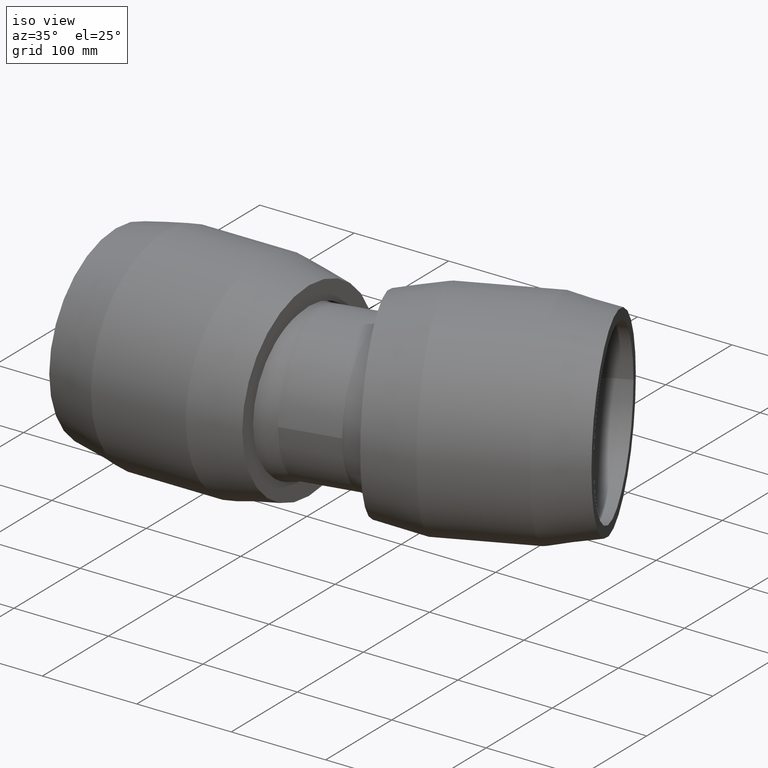
[diagram: clean part render]
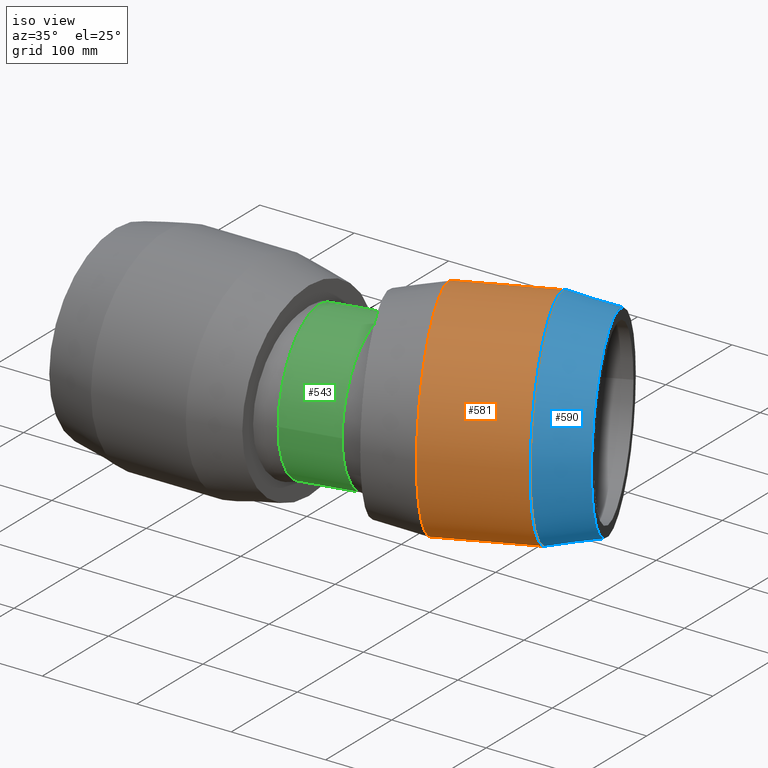
[diagram: same view with three faces highlighted in distinct colors, each labeled with its STEP entity id]
A machine part, iso view with three faces highlighted in distinct colors.
Their STEP definitions:

[orange] entity #581 — the highlighted cylindrical surface (bore or boss wall) has radius 112 mm, axis along (0.9135, 0.4067, 0).
#60=CYLINDRICAL_SURFACE('',#672,112.);
#101=FACE_BOUND('',#242,.T.);
#153=FACE_OUTER_BOUND('',#241,.T.);
#241=EDGE_LOOP('',(#516));
#242=EDGE_LOOP('',(#517));
#310=CIRCLE('',#673,112.);
#311=CIRCLE('',#674,112.);
#362=VERTEX_POINT('',#1350);
#363=VERTEX_POINT('',#1352);
#418=EDGE_CURVE('',#362,#362,#310,.T.);
#419=EDGE_CURVE('',#363,#363,#311,.T.);
#516=ORIENTED_EDGE('',*,*,#418,.T.);
#517=ORIENTED_EDGE('',*,*,#419,.F.);
#581=ADVANCED_FACE('',(#153,#101),#60,.T.);
#672=AXIS2_PLACEMENT_3D('',#1349,#851,#852);
#673=AXIS2_PLACEMENT_3D('',#1351,#853,#854);
#674=AXIS2_PLACEMENT_3D('',#1353,#855,#856);
#851=DIRECTION('center_axis',(0.913545457642601,0.406736643075799,1.19788532833232E-16));
#852=DIRECTION('ref_axis',(-0.406736643075799,0.913545457642601,-2.54618386665283E-17));
#853=DIRECTION('center_axis',(0.913545457642601,0.406736643075799,1.19788532833232E-16));
#854=DIRECTION('ref_axis',(1.19788532833232E-16,2.54618386665283E-17,-1.));
#855=DIRECTION('center_axis',(0.913545457642601,0.406736643075799,1.19788532833232E-16));
#856=DIRECTION('ref_axis',(1.19788532833232E-16,2.54618386665283E-17,-1.));
#1349=CARTESIAN_POINT('Origin',(263.27002458186,55.9597712159024,1.64807843250725E-14));
#1350=CARTESIAN_POINT('',(171.855538583712,137.858682989469,7.61567404619313E-15));
#1351=CARTESIAN_POINT('Origin',(217.410042608202,35.5415917334972,1.04673999768443E-14));
#1352=CARTESIAN_POINT('',(263.575502531029,178.695041954279,1.96424427426496E-14));
#1353=CARTESIAN_POINT('Origin',(309.130006555519,76.3779506983075,2.24941686733008E-14));

[blue] entity #590 — the highlighted conical surface has half-angle 12.155 deg.
#24=CONICAL_SURFACE('',#690,106.4,12.1549416972222);
#111=FACE_BOUND('',#261,.T.);
#112=FACE_BOUND('',#262,.T.);
#162=FACE_OUTER_BOUND('',#260,.T.);
#260=EDGE_LOOP('',(#536));
#261=EDGE_LOOP('',(#537));
#262=EDGE_LOOP('',(#538));
#270=B_SPLINE_CURVE_WITH_KNOTS('',3,(#1314,#1315,#1316,#1317,#1318,#1319,
#1320,#1321,#1322,#1323,#1324,#1325,#1326,#1327,#1328,#1329,#1330,#1331,
#1332,#1333,#1334,#1335,#1336,#1337,#1338,#1339,#1340,#1341,#1342,#1343,
#1344,#1345,#1346,#1347),.UNSPECIFIED.,.T.,.F.,(4,2,2,2,2,2,2,2,2,2,2,2,
2,2,2,2,4),(0.,0.358164539478607,0.716329078957213,1.07125671713556,1.42618435531391,
1.78111199349225,2.1360396316706,2.49420417114921,2.85236871062781,3.22667654703129,
3.60098438343476,3.96472311986868,4.32846185630259,4.6922005927365,5.05593932917041,
5.43024716557389,5.80455500197736),.UNSPECIFIED.);
#311=CIRCLE('',#674,112.);
#318=CIRCLE('',#689,100.8);
#361=VERTEX_POINT('',#1313);
#363=VERTEX_POINT('',#1352);
#370=VERTEX_POINT('',#1374);
#417=EDGE_CURVE('',#361,#361,#270,.T.);
#419=EDGE_CURVE('',#363,#363,#311,.T.);
#426=EDGE_CURVE('',#370,#370,#318,.T.);
#536=ORIENTED_EDGE('',*,*,#419,.T.);
#537=ORIENTED_EDGE('',*,*,#417,.F.);
#538=ORIENTED_EDGE('',*,*,#426,.F.);
#590=ADVANCED_FACE('',(#162,#111,#112),#24,.T.);
#674=AXIS2_PLACEMENT_3D('',#1353,#855,#856);
#689=AXIS2_PLACEMENT_3D('',#1375,#885,#886);
#690=AXIS2_PLACEMENT_3D('',#1376,#887,#888);
#855=DIRECTION('center_axis',(0.913545457642601,0.406736643075799,1.19788532833232E-16));
#856=DIRECTION('ref_axis',(1.19788532833232E-16,2.54618386665283E-17,-1.));
#885=DIRECTION('center_axis',(0.913545457642601,0.406736643075799,1.19788532833232E-16));
#886=DIRECTION('ref_axis',(1.19788532833232E-16,2.54618386665283E-17,-1.));
#887=DIRECTION('center_axis',(-0.913545457642601,-0.406736643075799,-1.19788532833232E-16));
#888=DIRECTION('ref_axis',(-0.406736643075799,0.913545457642601,-2.54618386665283E-17));
#1313=CARTESIAN_POINT('',(295.713556576889,185.002838010826,9.53230390726031));
#1314=CARTESIAN_POINT('Ctrl Pts',(295.713556576889,185.002838010826,9.53230390726032));
#1315=CARTESIAN_POINT('Ctrl Pts',(296.881594962363,185.248847154968,9.50950962551594));
#1316=CARTESIAN_POINT('Ctrl Pts',(298.121661827329,185.531745359839,9.25560423304978));
#1317=CARTESIAN_POINT('Ctrl Pts',(300.39039085949,186.089279585382,8.26367097447149));
#1318=CARTESIAN_POINT('Ctrl Pts',(301.419193267486,186.362844735535,7.52536227569253));
#1319=CARTESIAN_POINT('Ctrl Pts',(303.028993309592,186.808698003922,5.83427867926059));
#1320=CARTESIAN_POINT('Ctrl Pts',(303.720675265536,187.011219540689,4.77134468544424));
#1321=CARTESIAN_POINT('Ctrl Pts',(304.635845120632,187.284254723557,2.44572169687771));
#1322=CARTESIAN_POINT('Ctrl Pts',(304.859810604798,187.353672433519,1.18309212726118));
#1323=CARTESIAN_POINT('Ctrl Pts',(304.859810604798,187.353672433519,-1.18309212726113));
#1324=CARTESIAN_POINT('Ctrl Pts',(304.635845120632,187.284254723557,-2.44572169687766));
#1325=CARTESIAN_POINT('Ctrl Pts',(303.720675265536,187.011219540689,-4.7713446854442));
#1326=CARTESIAN_POINT('Ctrl Pts',(303.028993309592,186.808698003922,-5.83427867926054));
#1327=CARTESIAN_POINT('Ctrl Pts',(301.419193267486,186.362844735535,-7.52536227569248));
#1328=CARTESIAN_POINT('Ctrl Pts',(300.39039085949,186.089279585382,-8.26367097447144));
#1329=CARTESIAN_POINT('Ctrl Pts',(298.121661827329,185.531745359839,-9.25560423304973));
#1330=CARTESIAN_POINT('Ctrl Pts',(296.881594962363,185.248847154968,-9.50950962551589));
#1331=CARTESIAN_POINT('Ctrl Pts',(294.492872023529,184.745740670556,-9.5561255795412));
#1332=CARTESIAN_POINT('Ctrl Pts',(293.182037919885,184.493293098419,-9.33173342989749));
#1333=CARTESIAN_POINT('Ctrl Pts',(290.750755303332,184.065843775261,-8.36861293753614));
#1334=CARTESIAN_POINT('Ctrl Pts',(289.6304806826,183.889656884799,-7.62997198433754));
#1335=CARTESIAN_POINT('Ctrl Pts',(287.87447241197,183.630315190374,-5.92658105514738));
#1336=CARTESIAN_POINT('Ctrl Pts',(287.112892474502,183.527872987375,-4.85754180002549));
#1337=CARTESIAN_POINT('Ctrl Pts',(286.09633293171,183.395749192723,-2.50062894385518));
#1338=CARTESIAN_POINT('Ctrl Pts',(285.842162775071,183.365067735393,-1.21246245477969));
#1339=CARTESIAN_POINT('Ctrl Pts',(285.842162775071,183.365067735393,1.21246245477973));
#1340=CARTESIAN_POINT('Ctrl Pts',(286.09633293171,183.395749192723,2.50062894385522));
#1341=CARTESIAN_POINT('Ctrl Pts',(287.112892474502,183.527872987375,4.85754180002554));
#1342=CARTESIAN_POINT('Ctrl Pts',(287.87447241197,183.630315190374,5.92658105514742));
#1343=CARTESIAN_POINT('Ctrl Pts',(289.6304806826,183.889656884799,7.62997198433759));
#1344=CARTESIAN_POINT('Ctrl Pts',(290.750755303332,184.065843775261,8.36861293753619));
#1345=CARTESIAN_POINT('Ctrl Pts',(293.182037919885,184.493293098419,9.33173342989754));
#1346=CARTESIAN_POINT('Ctrl Pts',(294.492872023529,184.745740670556,9.55612557954125));
#1347=CARTESIAN_POINT('Ctrl Pts',(295.713556576889,185.002838010826,9.53230390726032));
#1352=CARTESIAN_POINT('',(263.575502531029,178.695041954279,1.96424427426496E-14));
#1353=CARTESIAN_POINT('Origin',(309.130006555519,76.3779506983075,2.24941686733008E-14));
#1374=CARTESIAN_POINT('',(315.635316730894,189.613638268623,2.61566190430428E-14));
#1375=CARTESIAN_POINT('Origin',(356.634370352934,97.528256138249,2.87231723806288E-14));
#1376=CARTESIAN_POINT('Origin',(332.882188454227,86.9531034182783,2.56086705269648E-14));

[green] entity #543 — the highlighted cylindrical surface (bore or boss wall) has radius 78.8328 mm, axis along (-0.9781, -0.2079, 0).
#45=CYLINDRICAL_SURFACE('',#601,78.8327887803867);
#65=FACE_BOUND('',#168,.T.);
#115=FACE_OUTER_BOUND('',#167,.T.);
#167=EDGE_LOOP('',(#437));
#168=EDGE_LOOP('',(#438));
#273=CIRCLE('',#596,78.8327887803868);
#276=CIRCLE('',#600,78.8327887803868);
#322=VERTEX_POINT('',#997);
#326=VERTEX_POINT('',#1105);
#375=EDGE_CURVE('',#322,#322,#273,.T.);
#380=EDGE_CURVE('',#326,#326,#276,.T.);
#437=ORIENTED_EDGE('',*,*,#380,.F.);
#438=ORIENTED_EDGE('',*,*,#375,.T.);
#543=ADVANCED_FACE('',(#115,#65),#45,.T.);
#596=AXIS2_PLACEMENT_3D('',#998,#699,#700);
#600=AXIS2_PLACEMENT_3D('',#1106,#707,#708);
#601=AXIS2_PLACEMENT_3D('',#1107,#709,#710);
#699=DIRECTION('center_axis',(-0.978147600733806,-0.20791169081776,0.));
#700=DIRECTION('ref_axis',(0.20791169081776,-0.978147600733806,0.));
#707=DIRECTION('center_axis',(-0.978147600733806,-0.20791169081776,0.));
#708=DIRECTION('ref_axis',(0.20791169081776,-0.978147600733806,0.));
#709=DIRECTION('center_axis',(-0.978147600733806,-0.20791169081776,0.));
#710=DIRECTION('ref_axis',(0.207911690817759,-0.978147600733806,0.));
#997=CARTESIAN_POINT('',(181.949797143641,-63.6426175018756,0.));
#998=CARTESIAN_POINT('Origin',(165.559538736431,13.4674857028145,0.));
#1105=CARTESIAN_POINT('',(122.936398481565,-76.1863026139488,0.));
#1106=CARTESIAN_POINT('Origin',(106.546140074356,0.923800590741405,0.));
#1107=CARTESIAN_POINT('Origin',(150.806189070912,10.3315644247962,0.));